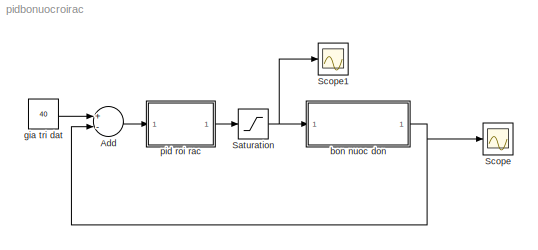
MODEL pidbonuocroirac
KIND model
BLOCK [Sum] Add
  InputSameDT = off
  Inputs = +-
  OutDataTypeStr = Inherit: Inherit via internal rule
  Ports = [2, 1]
  SID = 8
  SaturateOnIntegerOverflow = off
BLOCK [Saturate] Saturation
  InputPortMap = u0
  LowerLimit = 0
  Ports = [1, 1]
  SID = 20
  UpperLimit = 12
BLOCK [Scope] Scope
  Floating = off
  NumInputPorts = 1
  Ports = [1]
  SID = 18
  ScopeSpecificationString = Simulink.scopes.TimeScopeBlockCfg('CurrentConfiguration', extmgr.ConfigurationSet(extmgr.Configuration('Core','General UI',true),extmgr.Configuration('Core','Source UI',true),extmgr.Configuration('Sources','WiredSimulink',true),extmgr.Configuration('Visuals','Time Domain',true,'SerializedDisplays',{struct('MinYLimReal','6.25608','MaxYLimReal','43.69531','YLabelReal','','MinYLimMag','6.25608','MaxY...<+1361ch>
BLOCK [Scope] Scope1
  Floating = off
  NumInputPorts = 1
  Ports = [1]
  SID = 19
  ScopeSpecificationString = Simulink.scopes.TimeScopeBlockCfg('CurrentConfiguration', extmgr.ConfigurationSet(extmgr.Configuration('Core','General UI',true),extmgr.Configuration('Core','Source UI',true),extmgr.Configuration('Sources','WiredSimulink',true,'DataLoggingVariableName','ScopeData1'),extmgr.Configuration('Visuals','Time Domain',true,'SerializedDisplays',{struct('MinYLimReal','-0.87011','MaxYLimReal','13.43001','YLa...<+1426ch>
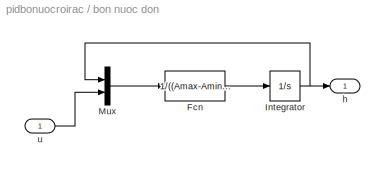
BLOCK [SubSystem] bon nuoc don
  Ports = [1, 1]
  RequestExecContextInheritance = off
  SID = 1
BLOCK [Fcn] bon nuoc don/Fcn
  Expr = 1/((Amax-Amin)/hmax*u(1)+Amin)*(k*u(2)-CD*a*sqrt(2*981*u(1)))
  SID = 5
BLOCK [Integrator] bon nuoc don/Integrator
  InitialCondition = h_init
  Ports = [1, 1]
  SID = 4
BLOCK [Mux] bon nuoc don/Mux
  DisplayOption = bar
  Inputs = 2
  Ports = [2, 1]
  SID = 6
BLOCK [Outport] bon nuoc don/h
  IconDisplay = Port number
  SID = 3
BLOCK [Inport] bon nuoc don/u
  IconDisplay = Port number
  SID = 2
BLOCK [Constant] gia tri dat
  SID = 7
  Value = 40
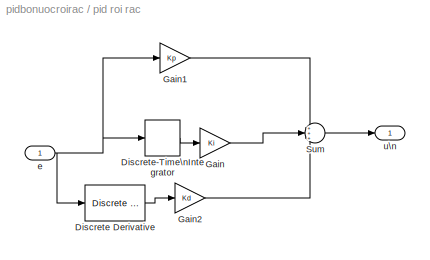
BLOCK [SubSystem] pid roi rac
  Ports = [1, 1]
  RequestExecContextInheritance = off
  SID = 9
BLOCK [Reference] pid roi rac/Discrete Derivative  REF=simulink/Discrete/Discrete Derivative
  DoSatur = off
  ICPrevScaledInput = 0.0
  InputProcessing = Elements as channels (sample based)
  LockScale = off
  OutDataType = fixdt(1, 16)
  OutDataTypeStr = Inherit: Inherit via internal rule
  OutMax = []
  OutMin = []
  OutScaling = 2^-10
  OutputDataTypeScalingMode = Inherit via internal rule
  Ports = [1, 1]
  RndMeth = Floor
  SID = 16
  SourceBlock = simulink/Discrete/Discrete Derivative
  SourceProductBaseCode = SL
  SourceProductName = Simulink
  SourceType = Discrete Derivative
  gainval = 1.0
BLOCK [DiscreteIntegrator] pid roi rac/Discrete-Time\nIntegrator
  ICPrevOutput = DiscIntNeverNeededParam
  ICPrevScaledInput = DiscIntNeverNeededParam
  InitialConditionSetting = Auto
  Ports = [1, 1]
  SID = 15
  SampleTime = -1
BLOCK [Gain] pid roi rac/Gain
  Gain = Ki
  OutDataTypeStr = Inherit: Inherit via internal rule
  ParamDataTypeStr = Inherit: Inherit via internal rule
  SID = 12
  SaturateOnIntegerOverflow = off
BLOCK [Gain] pid roi rac/Gain1
  Gain = Kp
  OutDataTypeStr = Inherit: Inherit via internal rule
  ParamDataTypeStr = Inherit: Inherit via internal rule
  SID = 13
  SaturateOnIntegerOverflow = off
BLOCK [Gain] pid roi rac/Gain2
  Gain = Kd
  OutDataTypeStr = Inherit: Inherit via internal rule
  ParamDataTypeStr = Inherit: Inherit via internal rule
  SID = 14
  SaturateOnIntegerOverflow = off
BLOCK [Sum] pid roi rac/Sum
  IconShape = round
  InputSameDT = off
  Inputs = +++
  OutDataTypeStr = Inherit: Inherit via internal rule
  Ports = [3, 1]
  SID = 17
  SaturateOnIntegerOverflow = off
BLOCK [Inport] pid roi rac/e
  IconDisplay = Port number
  SID = 10
BLOCK [Outport] pid roi rac/u\n
  IconDisplay = Port number
  SID = 11
LINE Add:1 -> pid roi rac:1
NET Saturation:1 -> Scope1:1, bon nuoc don:1
LINE bon nuoc don/Fcn:1 -> bon nuoc don/Integrator:1
NET bon nuoc don/Integrator:1 -> bon nuoc don/Mux:1, bon nuoc don/h:1
LINE bon nuoc don/Mux:1 -> bon nuoc don/Fcn:1
LINE bon nuoc don/u:1 -> bon nuoc don/Mux:2
NET bon nuoc don:1 -> Add:2, Scope:1
LINE gia tri dat:1 -> Add:1
LINE pid roi rac/Discrete Derivative:1 -> pid roi rac/Gain2:1
LINE pid roi rac/Discrete-Time\nIntegrator:1 -> pid roi rac/Gain:1
LINE pid roi rac/Gain1:1 -> pid roi rac/Sum:1
LINE pid roi rac/Gain2:1 -> pid roi rac/Sum:3
LINE pid roi rac/Gain:1 -> pid roi rac/Sum:2
LINE pid roi rac/Sum:1 -> pid roi rac/u\n:1
NET pid roi rac/e:1 -> pid roi rac/Discrete Derivative:1, pid roi rac/Discrete-Time\nIntegrator:1, pid roi rac/Gain1:1
LINE pid roi rac:1 -> Saturation:1
note: NET lines group one-source signal fan-out (src -> all destinations, sorted); 1:1 wires keep LINE
